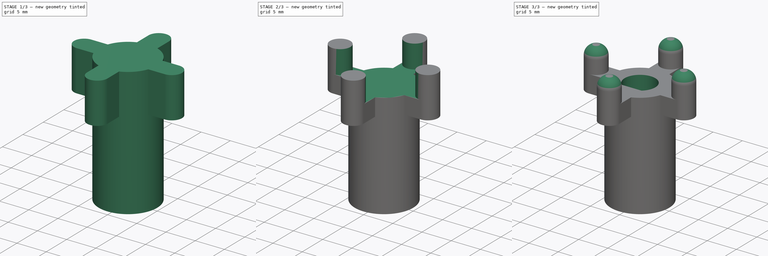
[diagram: build sequence overview — one tinted view per stage of 3, left to right]
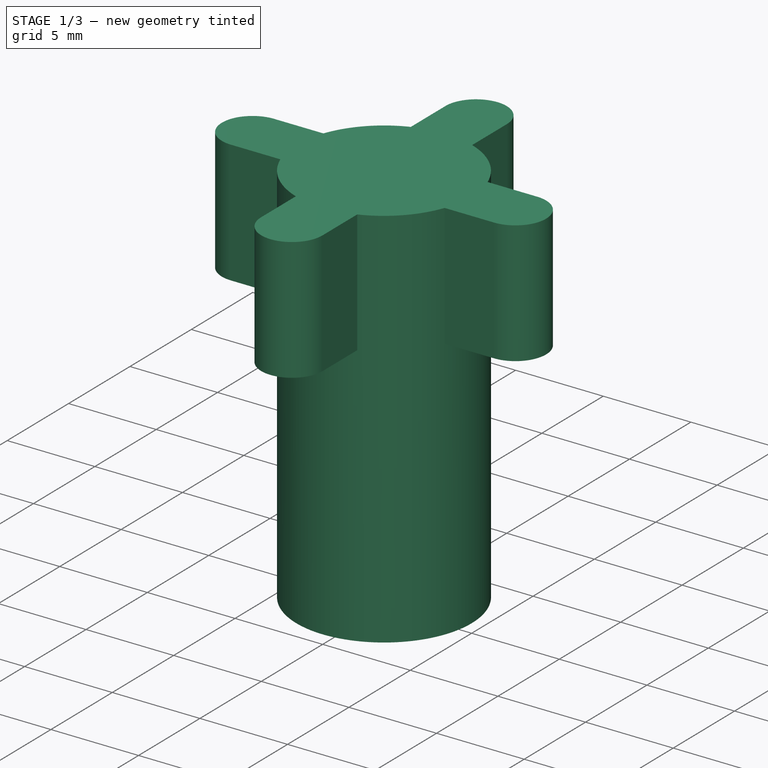
[diagram: stage 1 of 3 — iso view after this stage's code; geometry added in this stage tinted green]
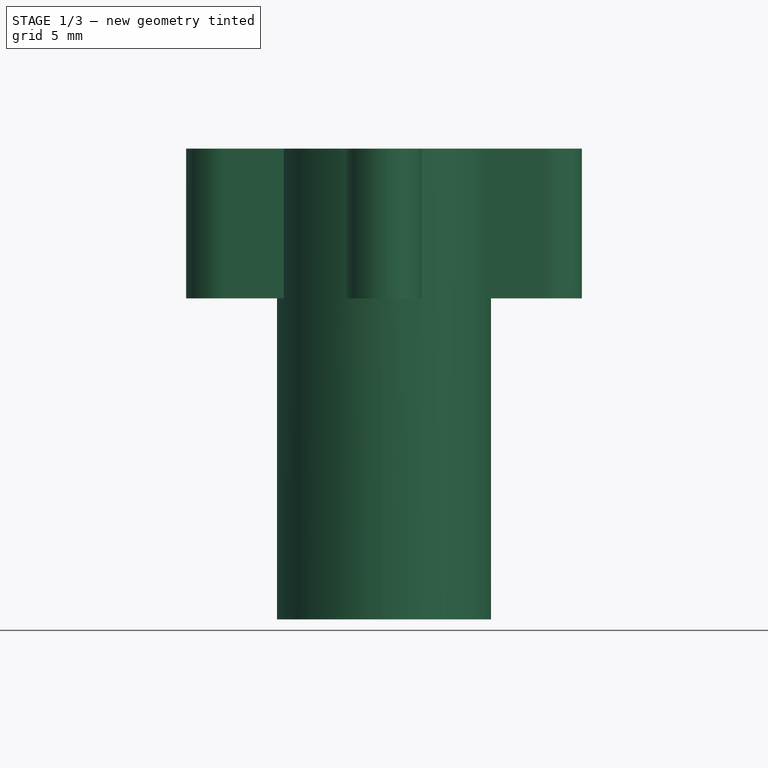
[diagram: stage 1 of 3 — front view after this stage's code; geometry added in this stage tinted green]
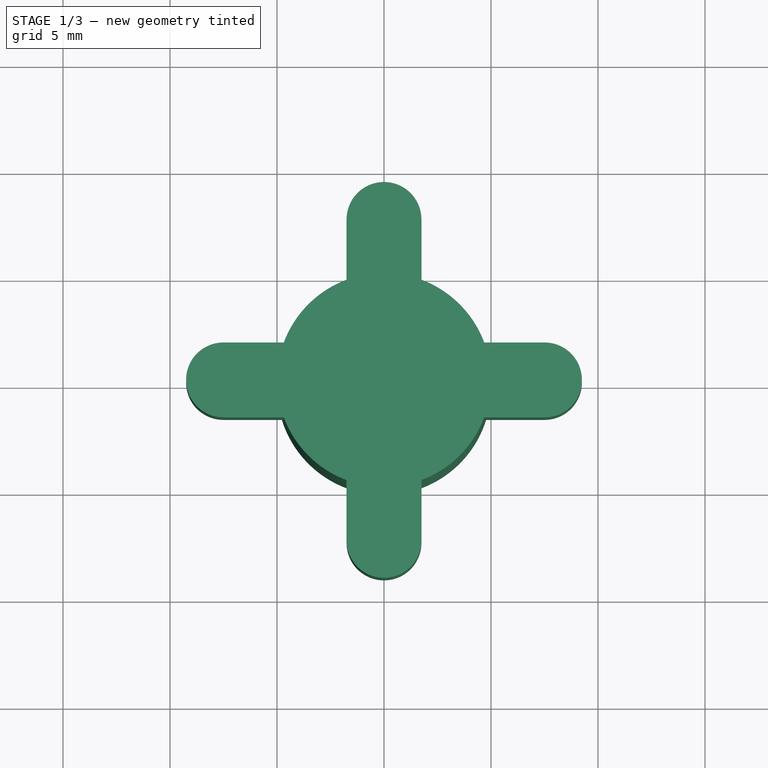
[diagram: stage 1 of 3 — top view after this stage's code; geometry added in this stage tinted green]
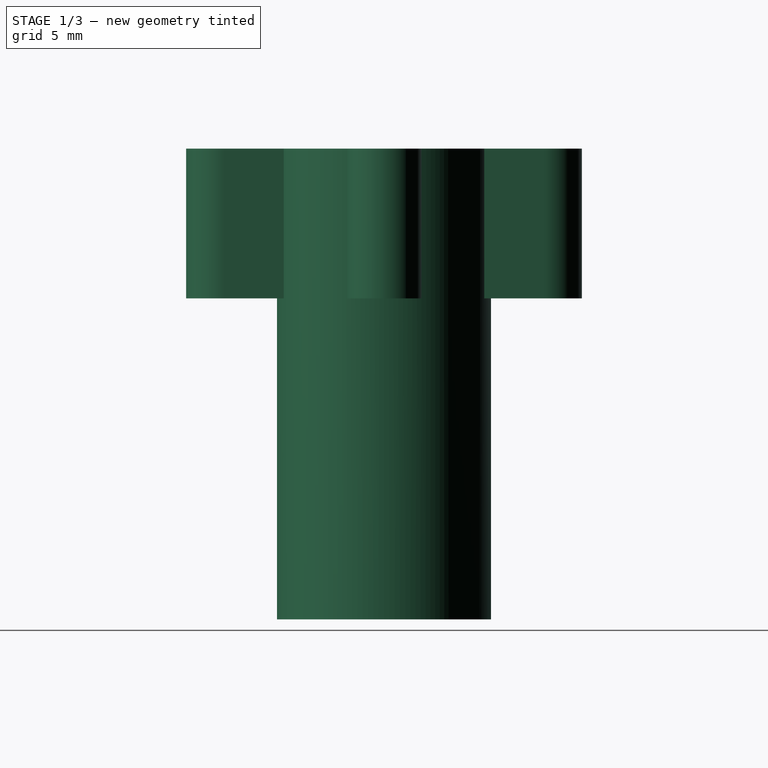
[diagram: stage 1 of 3 — right view after this stage's code; geometry added in this stage tinted green]
FCSTD DOCUMENT  (FreeCAD 0.15R4671 (Git))
Label: Drilled Cube Drive Bit
License: All rights reserved
LicenseURL: http://en.wikipedia.org/wiki/All_rights_reserved
objects: Sketcher::SketchObject×4, PartDesign::Pad×2, PartDesign::Pocket×2, PartDesign::Fillet×1
note: 13 computed .brp shape members not serialized (recipe doc carries the construction recipe); baked Part::Feature solids carry a one-line shape summary decoded from their .brp

FEATURE [Sketcher::SketchObject] Sketch
  sketch-geometry (1):
    g0: Circle CenterX=0 CenterY=0 CenterZ=0 NormalX=0 NormalY=0 NormalZ=1 Radius=5
  constraints (1):
    c: Radius(g0) = 5
FEATURE [PartDesign::Pad] Pad
  Length = 15
  Length2 = 100
  Sketch = -> Sketch
  Type = 0
FEATURE [Sketcher::SketchObject] Sketch001
  ExternalGeometry = -> [Pad]
  Placement = pos=(0,0,15) rot=(0,0,1;0rad)
  Support = -> Pad [Face3]
  sketch-geometry (16):
    g0: ArcOfCircle CenterX=0 CenterY=7.5 CenterZ=0 NormalX=0 NormalY=0 NormalZ=1 Radius=1.75 StartAngle=6.28319 EndAngle=9.42478
    g1: ArcOfCircle CenterX=7.5 CenterY=0 CenterZ=0 NormalX=0 NormalY=0 NormalZ=1 Radius=1.75 StartAngle=4.71239 EndAngle=7.85398
    g2: ArcOfCircle CenterX=0 CenterY=-7.5 CenterZ=0 NormalX=0 NormalY=0 NormalZ=1 Radius=1.75 StartAngle=3.14159 EndAngle=6.28319
    g3: ArcOfCircle CenterX=-7.5 CenterY=0 CenterZ=0 NormalX=0 NormalY=0 NormalZ=1 Radius=1.75 StartAngle=1.5708 EndAngle=4.71239
    g4: LineSegment StartX=-7.5 StartY=1.75 StartZ=0 EndX=-4.68375 EndY=1.75 EndZ=0
    g5: LineSegment StartX=-7.5 StartY=-1.75 StartZ=0 EndX=-4.68375 EndY=-1.75 EndZ=0
    g6: LineSegment StartX=-1.75 StartY=-7.5 StartZ=0 EndX=-1.75 EndY=-4.68375 EndZ=0
    g7: LineSegment StartX=-1.75 StartY=7.5 StartZ=0 EndX=-1.75 EndY=4.68375 EndZ=0
    g8: LineSegment StartX=1.75 StartY=7.5 StartZ=0 EndX=1.75 EndY=4.68375 EndZ=0
    g9: LineSegment StartX=7.5 StartY=1.75 StartZ=0 EndX=4.68375 EndY=1.75 EndZ=0
    g10: LineSegment StartX=7.5 StartY=-1.75 StartZ=0 EndX=4.68375 EndY=-1.75 EndZ=0
    g11: LineSegment StartX=1.75 StartY=-7.5 StartZ=0 EndX=1.75 EndY=-4.68375 EndZ=0
    g12: ArcOfCircle CenterX=0 CenterY=0 CenterZ=0 NormalX=0 NormalY=0 NormalZ=1 Radius=5 StartAngle=1.92837 EndAngle=2.78402
    g13: ArcOfCircle CenterX=0 CenterY=0 CenterZ=0 NormalX=0 NormalY=0 NormalZ=1 Radius=5 StartAngle=0.357571 EndAngle=1.21323
    g14: ArcOfCircle CenterX=0 CenterY=0 CenterZ=0 NormalX=0 NormalY=0 NormalZ=1 Radius=5 StartAngle=5.06996 EndAngle=5.92561
    g15: ArcOfCircle CenterX=0 CenterY=0 CenterZ=0 NormalX=0 NormalY=0 NormalZ=1 Radius=5 StartAngle=3.49916 EndAngle=4.35482
  constraints (56):
    c: PointOnObject(g0,g-2)
    c: PointOnObject(g1,g-1)
    c: PointOnObject(g2,g-2)
    c: PointOnObject(g3,g-1)
    c: Radius(g3) = 1.75
    c: Equal(g3,g2)
    c: Coincident(g4,g3)
    c: PointOnObject(g4,g-3)
    c: Horizontal(g4)
    c: Coincident(g5,g3)
    c: Horizontal(g5)
    c: PointOnObject(g5,g-3)
    c: Coincident(g6,g2)
    c: PointOnObject(g6,g-3)
    c: Vertical(g6)
    c: Symmetric(g1,g3,g-2)
    c: Symmetric(g0,g2,g-1)
    c: DistanceX(g1,g3) = -15
    c: DistanceY(g2,g0) = 15
    c: Coincident(g7,g0)
    c: PointOnObject(g7,g-3)
    c: Vertical(g7)
    c: Coincident(g8,g0)
    c: PointOnObject(g8,g-3)
    c: Vertical(g8)
    c: Coincident(g9,g1)
    c: PointOnObject(g9,g-3)
    c: Horizontal(g9)
    c: Coincident(g10,g1)
    c: PointOnObject(g10,g-3)
    c: Horizontal(g10)
    c: Coincident(g11,g2)
    c: PointOnObject(g11,g-3)
    c: Vertical(g11)
    c: Tangent(g2,g6)
    c: Tangent(g2,g11)
    c: Tangent(g10,g1)
    c: Tangent(g1,g9)
    c: Tangent(g8,g0)
    c: Tangent(g7,g0)
    c: Tangent(g4,g3)
    c: Tangent(g3,g5)
    c: Equal(g3,g0)
    c: Equal(g0,g1)
    c: Coincident(g12,g-1)
    c: Coincident(g12,g4)
    c: Coincident(g12,g7)
    c: Coincident(g13,g-1)
    c: Coincident(g13,g8)
    c: Coincident(g13,g9)
    c: Coincident(g14,g-1)
    c: Coincident(g14,g10)
    c: Coincident(g14,g11)
    c: Coincident(g15,g-1)
    c: Coincident(g15,g6)
    c: Coincident(g15,g5)
FEATURE [PartDesign::Pad] Pad001
  Length = 7
  Length2 = 100
  Sketch = -> Sketch001
  Type = 0
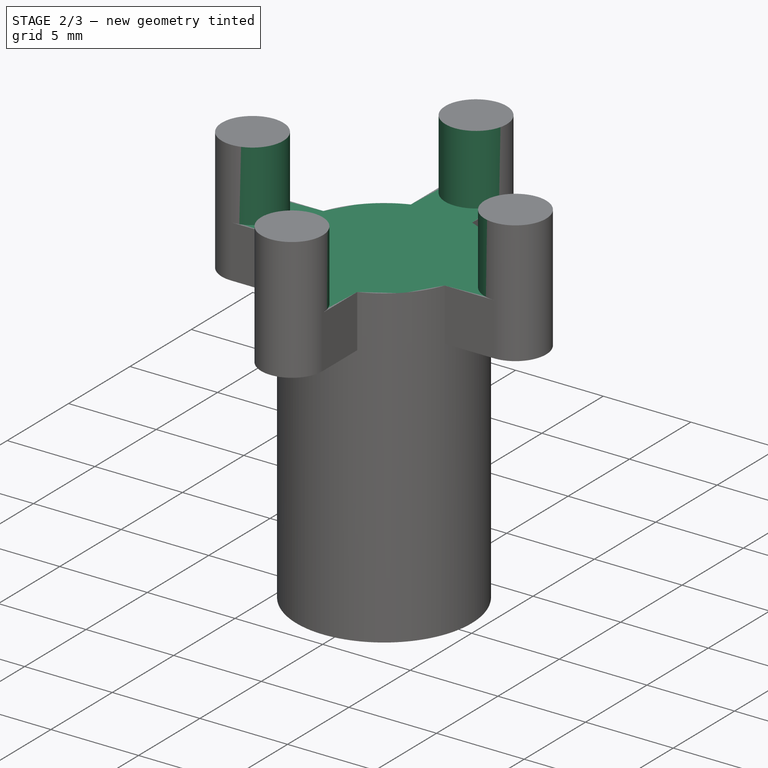
[diagram: stage 2 of 3 — iso view after this stage's code; geometry added in this stage tinted green]
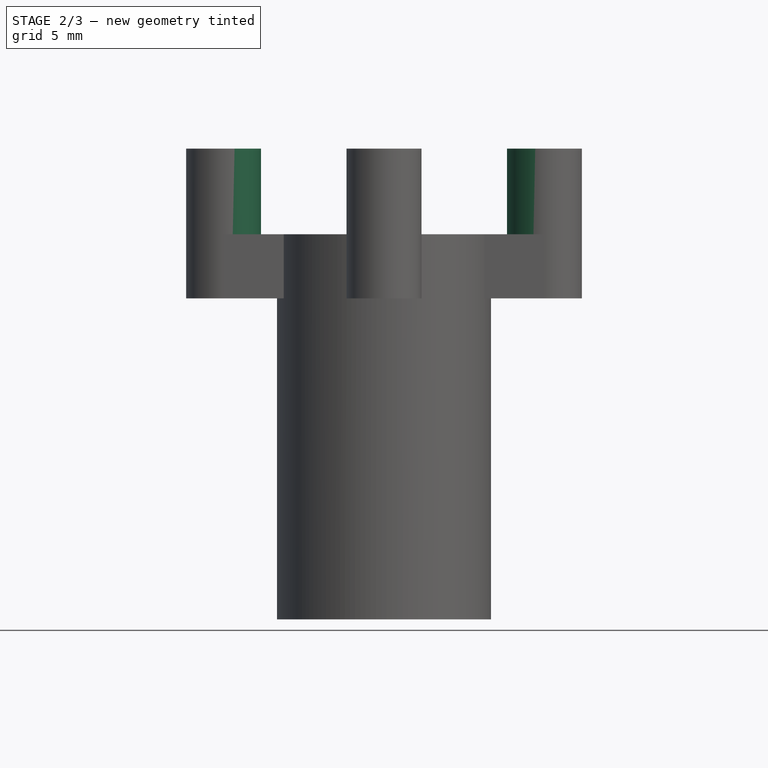
[diagram: stage 2 of 3 — front view after this stage's code; geometry added in this stage tinted green]
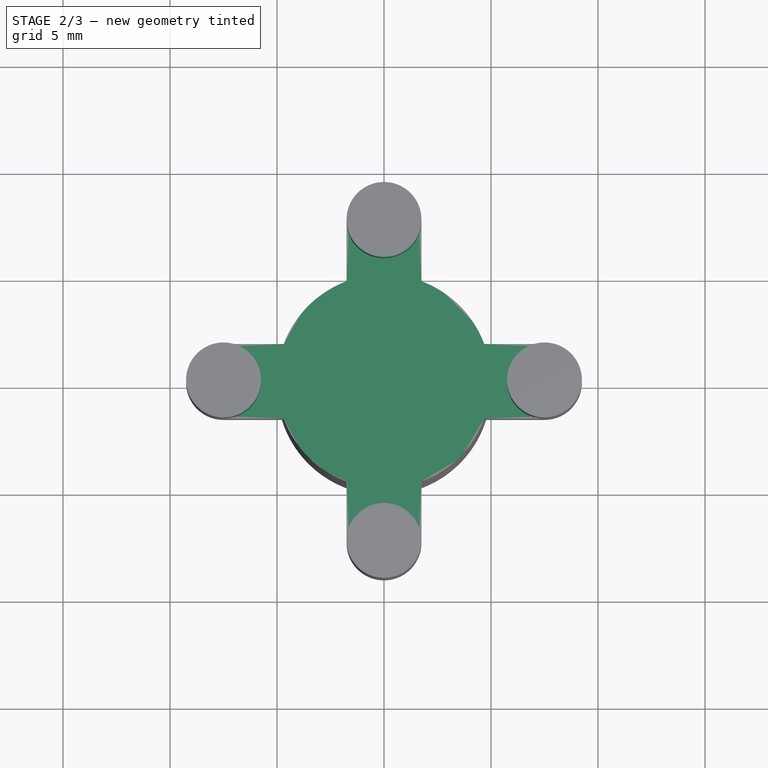
[diagram: stage 2 of 3 — top view after this stage's code; geometry added in this stage tinted green]
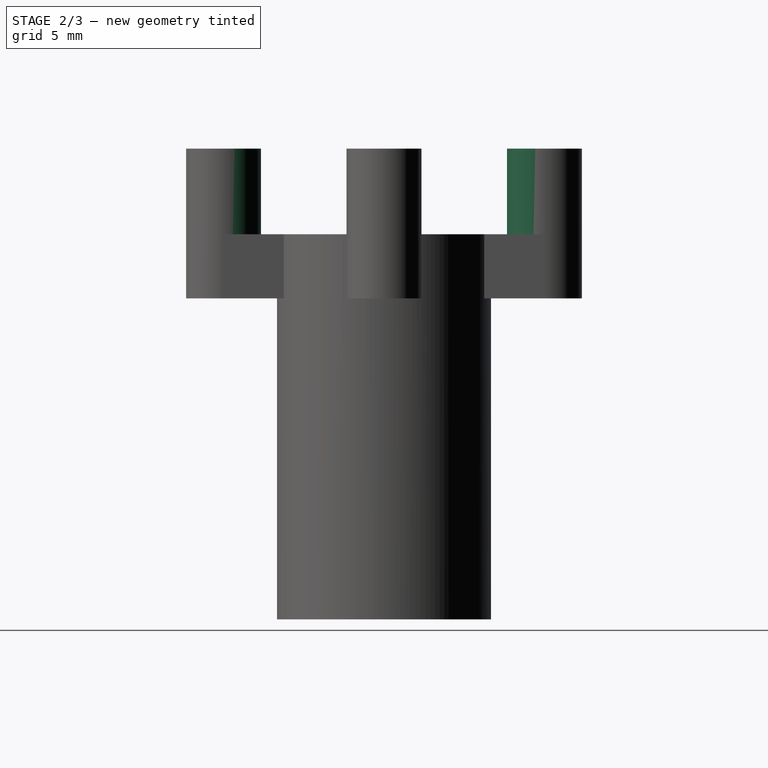
[diagram: stage 2 of 3 — right view after this stage's code; geometry added in this stage tinted green]
FEATURE [Sketcher::SketchObject] Sketch002
  ExternalGeometry = -> [Pad001]
  Placement = pos=(0,0,22) rot=(0,0,1;0rad)
  Support = -> Pad001 [Face15]
  sketch-geometry (16):
    g0: ArcOfCircle CenterX=-7.5 CenterY=0 CenterZ=0 NormalX=0 NormalY=0 NormalZ=1 Radius=1.75 StartAngle=4.71239 EndAngle=7.85398
    g1: ArcOfCircle CenterX=0 CenterY=7.5 CenterZ=0 NormalX=0 NormalY=0 NormalZ=1 Radius=1.75 StartAngle=3.14159 EndAngle=6.28319
    g2: ArcOfCircle CenterX=7.5 CenterY=0 CenterZ=0 NormalX=0 NormalY=0 NormalZ=1 Radius=1.75 StartAngle=1.5708 EndAngle=4.71239
    g3: ArcOfCircle CenterX=0 CenterY=-7.5 CenterZ=0 NormalX=0 NormalY=0 NormalZ=1 Radius=1.75 StartAngle=6.28319 EndAngle=9.42478
    g4: LineSegment StartX=1.75 StartY=-7.5 StartZ=0 EndX=1.75 EndY=-4.68375 EndZ=0
    g5: LineSegment StartX=4.68375 StartY=-1.75 StartZ=0 EndX=7.5 EndY=-1.75 EndZ=0
    g6: LineSegment StartX=7.5 StartY=1.75 StartZ=0 EndX=4.68375 EndY=1.75 EndZ=0
    g7: LineSegment StartX=1.75 StartY=4.68375 StartZ=0 EndX=1.75 EndY=7.5 EndZ=0
    g8: LineSegment StartX=-1.75 StartY=7.5 StartZ=0 EndX=-1.75 EndY=4.68375 EndZ=0
    g9: LineSegment StartX=-4.68375 StartY=1.75 StartZ=0 EndX=-7.5 EndY=1.75 EndZ=0
    g10: LineSegment StartX=-7.5 StartY=-1.75 StartZ=0 EndX=-4.68375 EndY=-1.75 EndZ=0
    g11: LineSegment StartX=-1.75 StartY=-7.5 StartZ=0 EndX=-1.75 EndY=-4.68375 EndZ=0
    g12: ArcOfCircle CenterX=0 CenterY=0 CenterZ=0 NormalX=0 NormalY=0 NormalZ=1 Radius=5 StartAngle=1.92837 EndAngle=2.78402
    g13: ArcOfCircle CenterX=0 CenterY=0 CenterZ=0 NormalX=0 NormalY=0 NormalZ=1 Radius=5 StartAngle=0.357571 EndAngle=1.21323
    g14: ArcOfCircle CenterX=0 CenterY=0 CenterZ=0 NormalX=0 NormalY=0 NormalZ=1 Radius=5 StartAngle=5.06996 EndAngle=5.92561
    g15: ArcOfCircle CenterX=0 CenterY=0 CenterZ=0 NormalX=0 NormalY=0 NormalZ=1 Radius=5 StartAngle=3.49916 EndAngle=4.35482
  constraints (51):
    c: Coincident(g0,g-6)
    c: Coincident(g0,g-6)
    c: Coincident(g0,g-6)
    c: Coincident(g1,g-3)
    c: Coincident(g1,g-3)
    c: Coincident(g1,g-3)
    c: Coincident(g2,g-4)
    c: Coincident(g2,g-4)
    c: Coincident(g2,g-4)
    c: Coincident(g3,g-5)
    c: Coincident(g3,g-5)
    c: Coincident(g3,g-5)
    c: Coincident(g4,g3)
    c: Coincident(g4,g-10)
    c: Coincident(g5,g-10)
    c: Coincident(g5,g2)
    c: Horizontal(g5)
    c: Tangent(g5,g2)
    c: Coincident(g6,g2)
    c: Coincident(g6,g-9)
    c: Horizontal(g6)
    c: Coincident(g7,g-9)
    c: Coincident(g7,g1)
    c: Vertical(g7)
    c: Coincident(g8,g1)
    c: Coincident(g8,g-8)
    c: Vertical(g8)
    c: Tangent(g8,g1)
    c: Coincident(g9,g-8)
    c: Coincident(g9,g0)
    c: Tangent(g9,g0)
    c: Coincident(g10,g0)
    c: Coincident(g10,g-7)
    c: Horizontal(g10)
    c: Tangent(g10,g0)
    c: Coincident(g11,g3)
    c: Coincident(g11,g-7)
    c: Vertical(g11)
    c: Tangent(g11,g3)
    c: Coincident(g12,g-1)
    c: Coincident(g12,g9)
    c: Coincident(g12,g8)
    c: Coincident(g13,g-1)
    c: Coincident(g13,g7)
    c: Coincident(g13,g6)
    c: Coincident(g14,g-1)
    c: Coincident(g14,g5)
    c: Coincident(g14,g4)
    c: Coincident(g15,g-1)
    c: Coincident(g15,g11)
    c: Coincident(g15,g10)
FEATURE [PartDesign::Pocket] Pocket
  Length = 4
  Sketch = -> Sketch002
  Type = 0
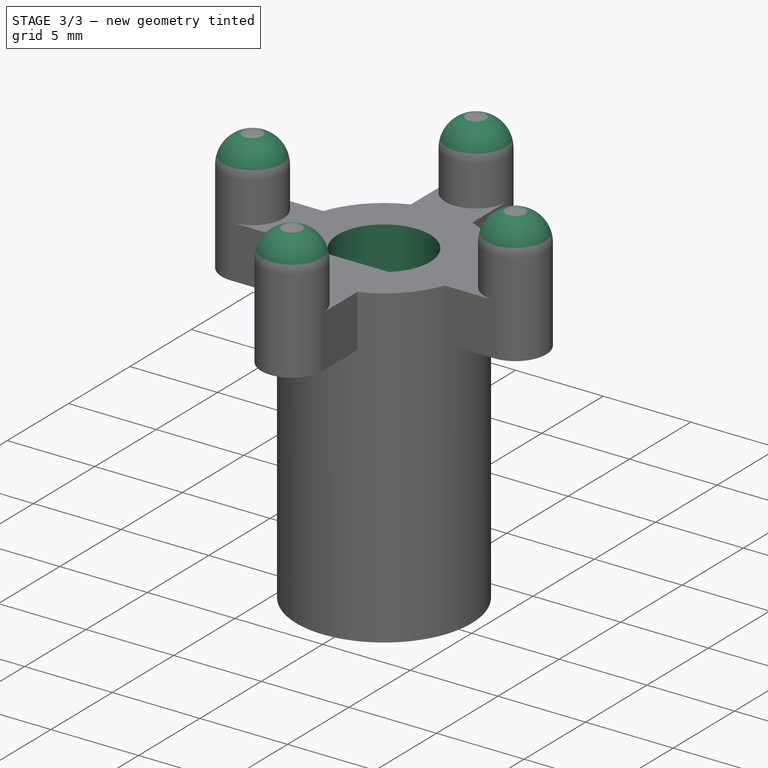
[diagram: stage 3 of 3 — iso view after this stage's code; geometry added in this stage tinted green]
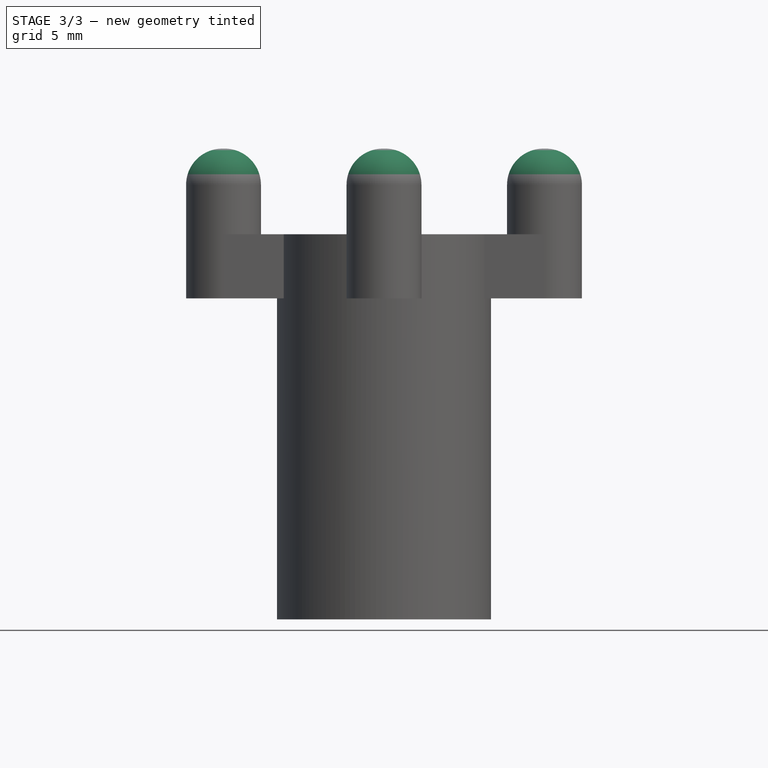
[diagram: stage 3 of 3 — front view after this stage's code; geometry added in this stage tinted green]
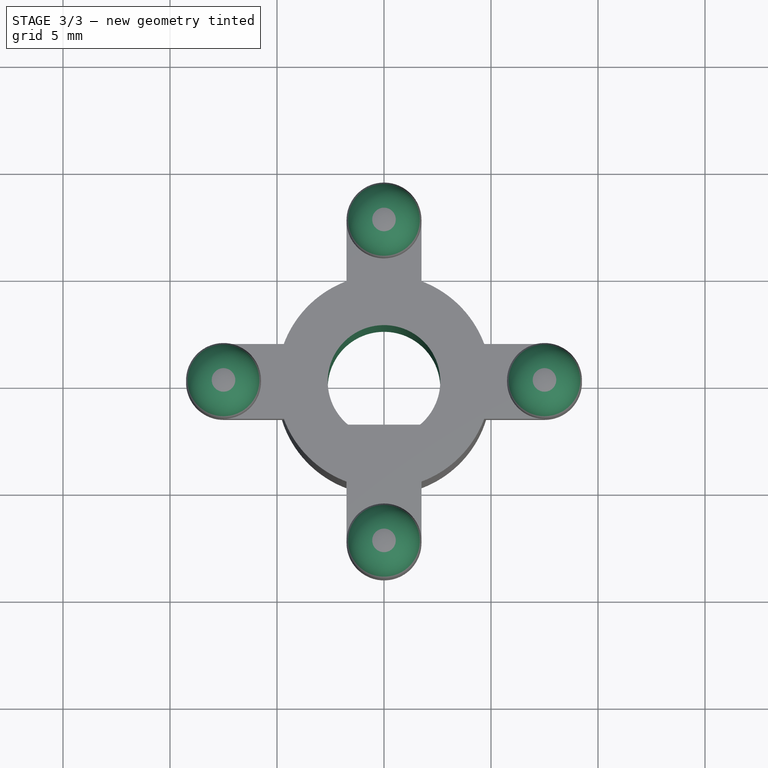
[diagram: stage 3 of 3 — top view after this stage's code; geometry added in this stage tinted green]
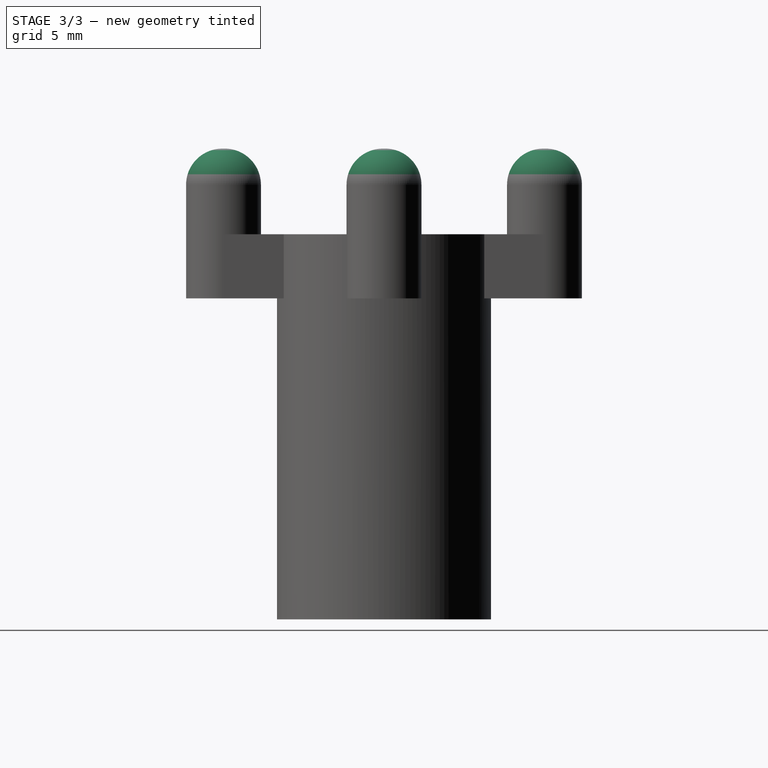
[diagram: stage 3 of 3 — right view after this stage's code; geometry added in this stage tinted green]
FEATURE [Sketcher::SketchObject] Sketch003
  Placement = pos=(0,0,0) rot=(1,0,0;3.14159rad)
  Support = -> Pocket [Face1]
  sketch-geometry (3):
    g0: ArcOfCircle CenterX=0 CenterY=0 CenterZ=0 NormalX=0 NormalY=0 NormalZ=1 Radius=2.63 StartAngle=2.26579 EndAngle=7.15899
    g1: LineSegment StartX=1.68419 StartY=2.02 StartZ=0 EndX=-1.68419 EndY=2.02 EndZ=0
    g2: GeomPoint [constr] X=0 Y=-2.63 Z=0
  constraints (8):
    c: Coincident(g0,g-1)
    c: Coincident(g1,g0)
    c: Coincident(g1,g0)
    c: PointOnObject(g2,g0)
    c: PointOnObject(g2,g-2)
    c: DistanceY(g2,g0) = 4.65
    c: Radius(g0) = 2.63
    c: Horizontal(g1)
FEATURE [PartDesign::Pocket] Pocket001
  Length = 5
  Sketch = -> Sketch003
  Type = 1
FEATURE [PartDesign::Fillet] Fillet
  Base = -> Pocket001 [Edge72,Edge76,Edge75,Edge62,Edge74,Edge67,Edge57,Edge77]
  Radius = 1.69
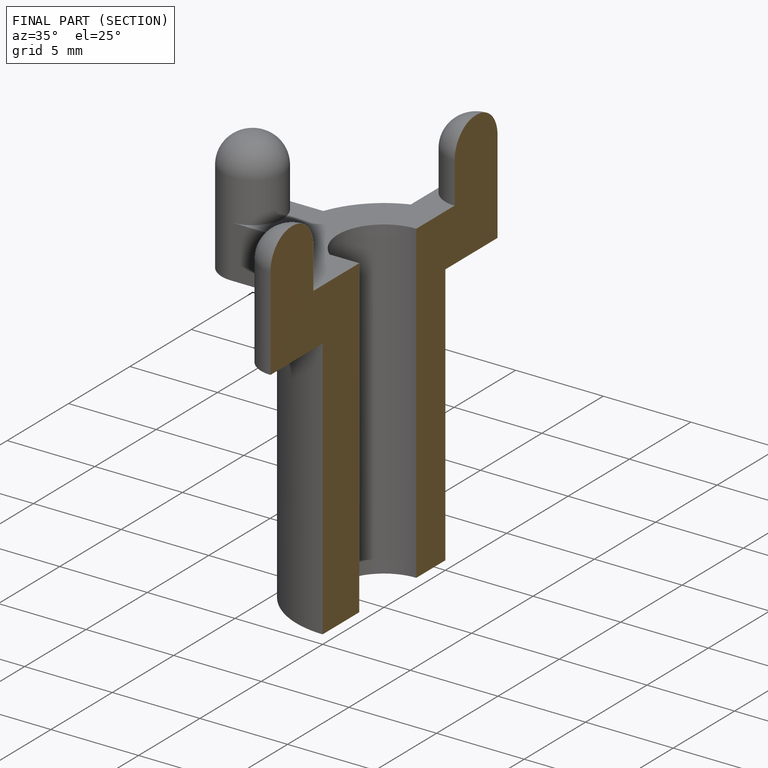
[diagram: finished part — half-section view (interior)]
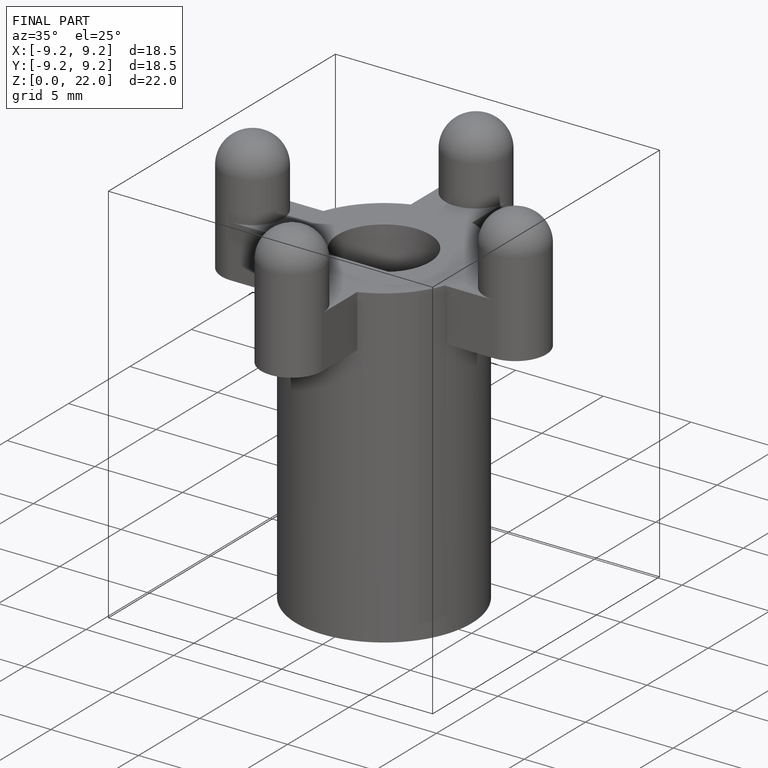
[diagram: finished part — iso view with bounding-box wireframe]
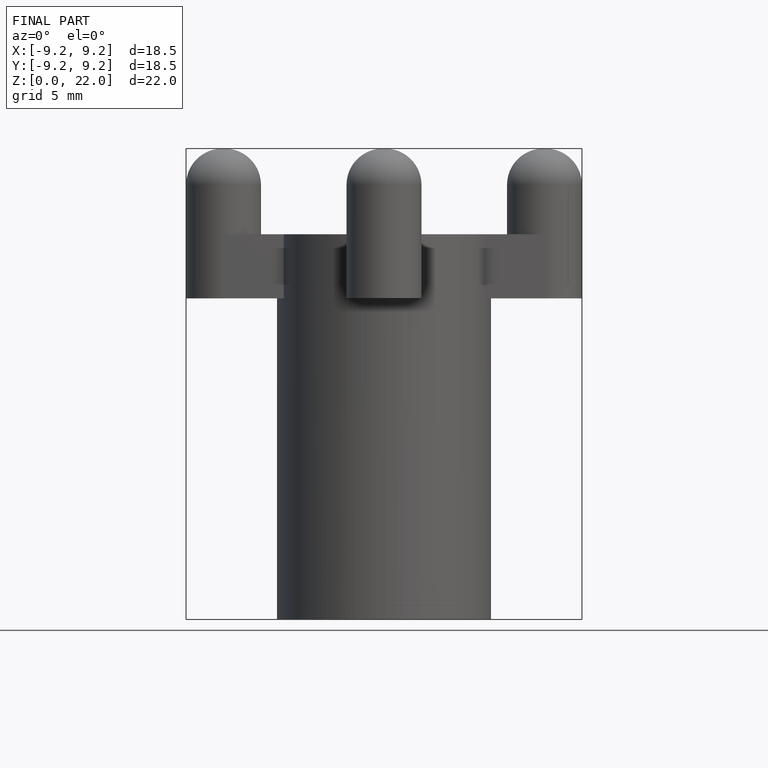
[diagram: finished part — front view with bounding-box wireframe]
